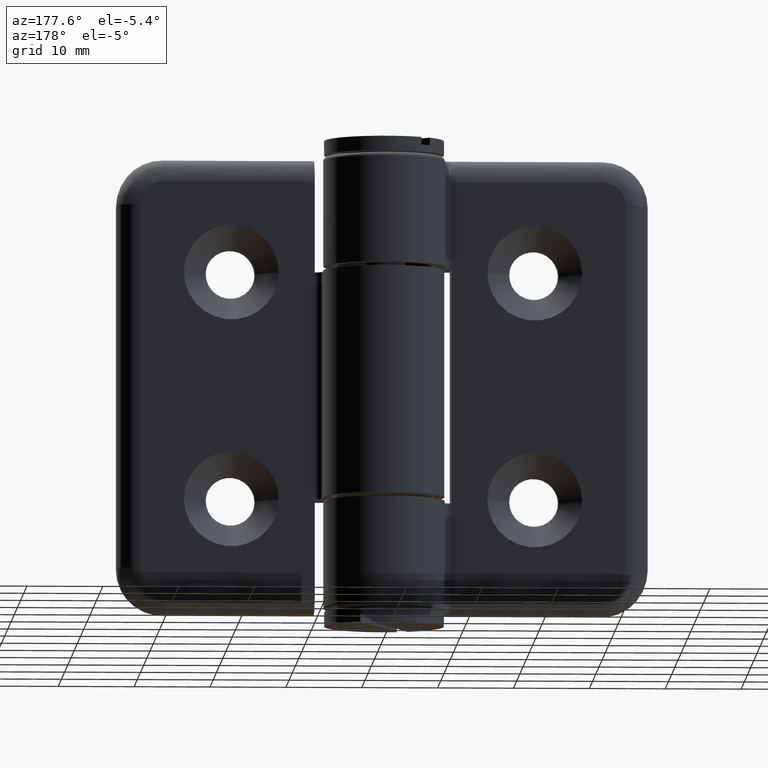
[diagram: clean part render]
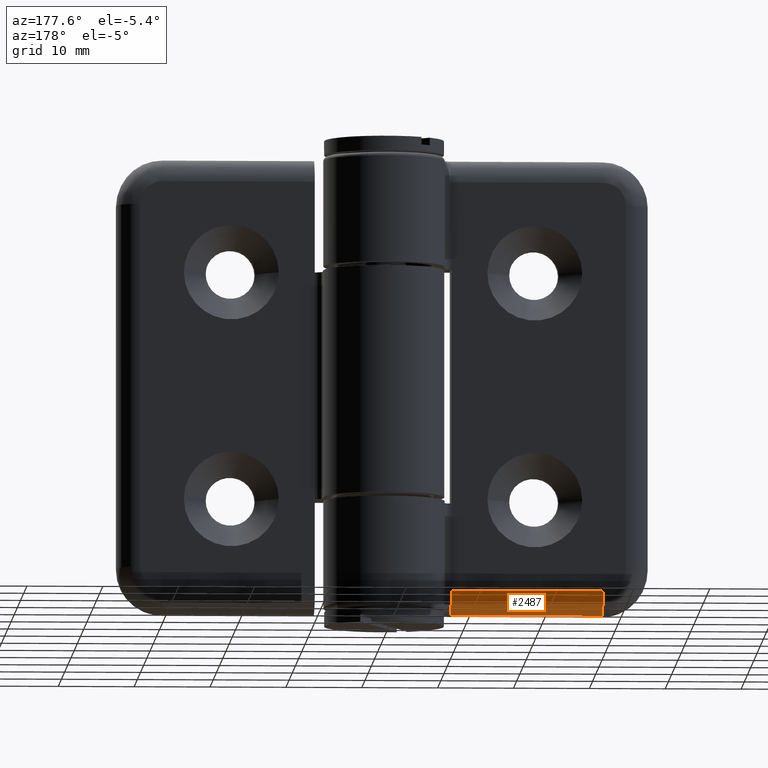
[diagram: same view with one face highlighted and labeled with its STEP entity id]
A machine part, auxiliary view. The second image highlights one B-rep face of the part: STEP entity #2487.
In plain terms, the highlighted cylindrical surface (edge-blend (fillet) strip) has radius 3 mm, axis along (-1, -0, 0).
Its self-contained STEP definition (entity closure, byte-faithful):
#125=LINE('',#3749,#299);
#199=LINE('',#4091,#373);
#299=VECTOR('',#3002,20.);
#373=VECTOR('',#3214,20.);
#566=CYLINDRICAL_SURFACE('',#2711,3.);
#656=FACE_OUTER_BOUND('',#840,.T.);
#840=EDGE_LOOP('',(#1906,#1907,#1908,#1909));
#1025=CIRCLE('',#2712,3.);
#1026=CIRCLE('',#2713,3.);
#1129=VERTEX_POINT('',#3746);
#1130=VERTEX_POINT('',#3748);
#1193=VERTEX_POINT('',#3940);
#1219=VERTEX_POINT('',#4090);
#1366=EDGE_CURVE('',#1130,#1129,#125,.T.);
#1486=EDGE_CURVE('',#1219,#1193,#199,.T.);
#1489=EDGE_CURVE('',#1129,#1219,#1025,.T.);
#1490=EDGE_CURVE('',#1193,#1130,#1026,.T.);
#1906=ORIENTED_EDGE('',*,*,#1366,.T.);
#1907=ORIENTED_EDGE('',*,*,#1489,.T.);
#1908=ORIENTED_EDGE('',*,*,#1486,.T.);
#1909=ORIENTED_EDGE('',*,*,#1490,.T.);
#2487=ADVANCED_FACE('',(#656),#566,.T.);
#2711=AXIS2_PLACEMENT_3D('',#4095,#3219,#3220);
#2712=AXIS2_PLACEMENT_3D('',#4096,#3221,#3222);
#2713=AXIS2_PLACEMENT_3D('',#4097,#3223,#3224);
#3002=DIRECTION('',(-1.,-1.85037170770859E-16,0.));
#3214=DIRECTION('',(1.,1.85037170770859E-16,0.));
#3219=DIRECTION('center_axis',(-1.,-1.85037170770859E-16,0.));
#3220=DIRECTION('ref_axis',(-1.30841038223648E-16,0.707106781186548,-0.707106781186547));
#3221=DIRECTION('center_axis',(1.,0.,0.));
#3222=DIRECTION('ref_axis',(0.,0.,-1.));
#3223=DIRECTION('center_axis',(-1.,0.,0.));
#3224=DIRECTION('ref_axis',(0.,1.,0.));
#3746=CARTESIAN_POINT('',(-29.,-6.00000000000001,-30.));
#3748=CARTESIAN_POINT('',(-9.,-6.00000000000001,-30.));
#3749=CARTESIAN_POINT('',(-23.760997035644,-6.00000000000001,-30.));
#3940=CARTESIAN_POINT('',(-9.,-3.,-27.));
#4090=CARTESIAN_POINT('',(-29.,-3.00000000000001,-27.));
#4091=CARTESIAN_POINT('',(-23.760997035644,-3.00000000000001,-27.));
#4095=CARTESIAN_POINT('Origin',(-23.760997035644,-6.00000000000001,-27.));
#4096=CARTESIAN_POINT('Origin',(-29.,-6.00000000000001,-27.));
#4097=CARTESIAN_POINT('Origin',(-9.,-6.00000000000001,-27.));